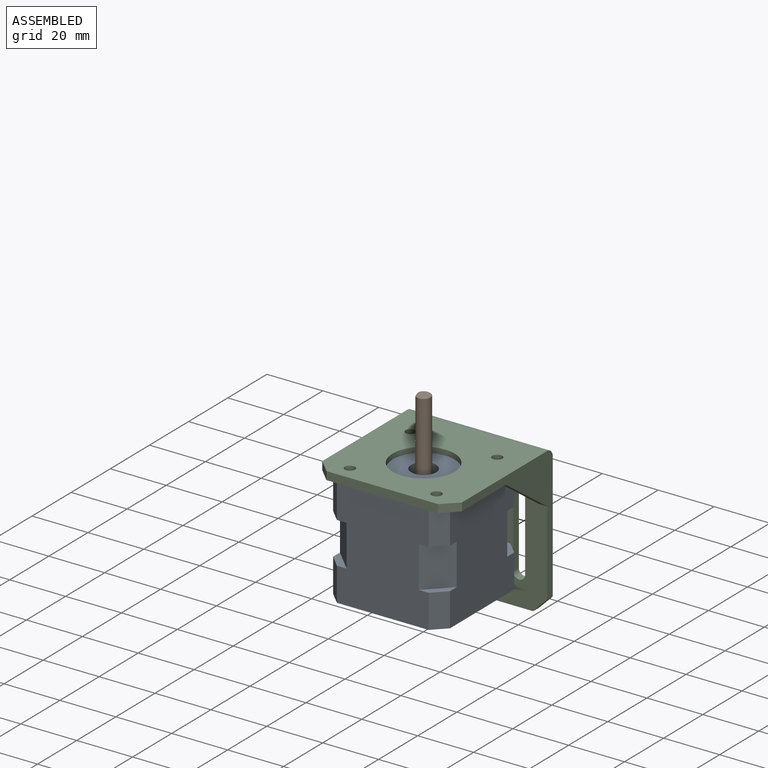
[diagram: assembled view]
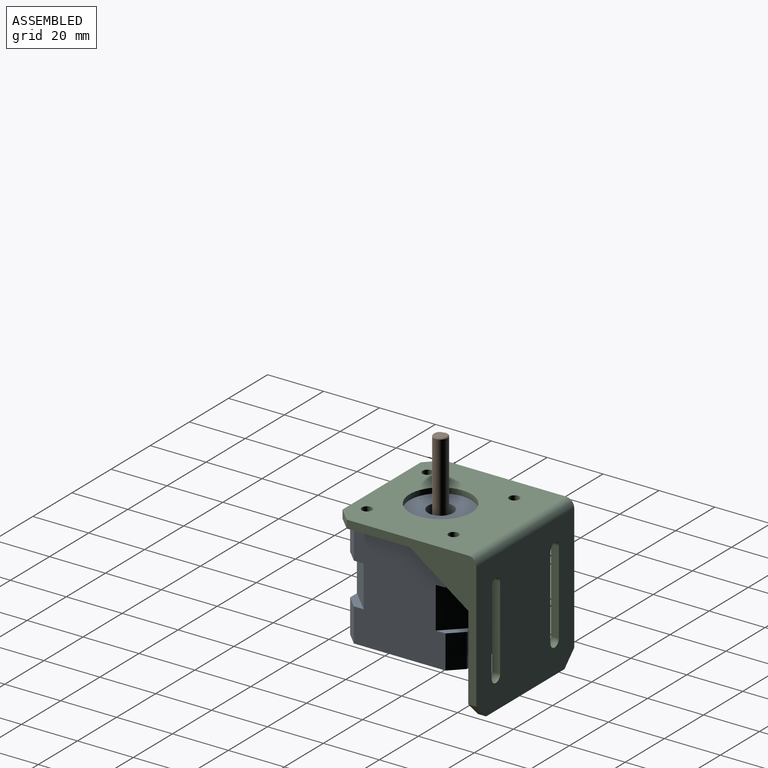
[diagram: assembled view, second angle]
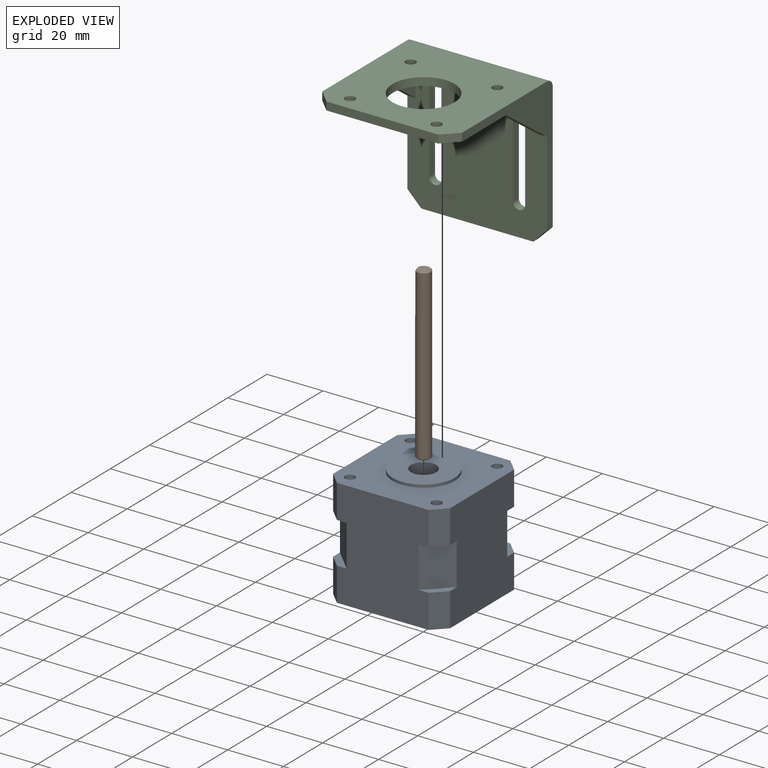
[diagram: exploded view]
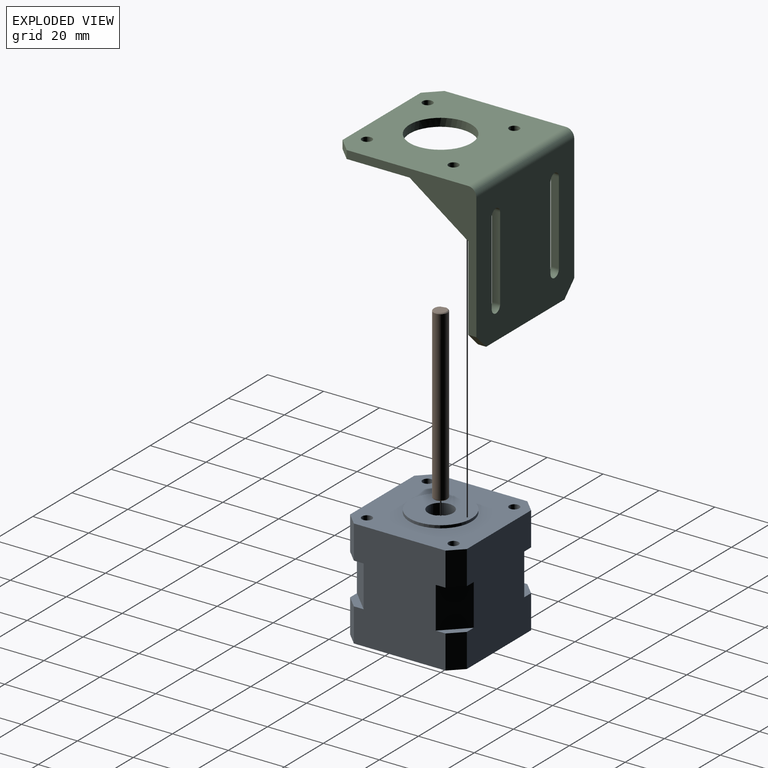
[diagram: exploded view, second angle]
ASSEMBLY  parts=3 mates=2
PART A: 37 faces, bbox 41.8x39.8x41.8 mm
  f0: plane 38.8x32.8mm, normal (0,0,1), area 1169mm2, adj f4,f7,f14,f15,f16,f17,f25,f26
  f1: plane 38.8x32.8mm, normal (1,0,0), area 1169mm2, adj f6,f7,f14,f15,f17,f19,f25,f26
  f2: plane 38.8x32.8mm, normal (-1,0,0), area 1169mm2, adj f4,f5,f14,f15,f16,f18,f31,f32
  f3: plane 38.8x32.8mm, normal (0,0,-1), area 1169mm2, adj f5,f6,f14,f15,f18,f19,f28,f29
  f4: plane 12x4.5mm, normal (-0.71,0,0.71), area 76.4mm2, adj f0,f2,f15,f35
  f5: plane 12x4.5mm, normal (-0.71,0,-0.71), area 76.4mm2, adj f2,f3,f15,f32
  f6: plane 12x4.5mm, normal (0.71,0,-0.71), area 76.4mm2, adj f1,f3,f15,f29
  f7: plane 12x4.5mm, normal (0.71,0,0.71), area 76.4mm2, adj f0,f1,f15,f26
  f8: cylinder r=4.5mm len=9mm, axis (0,1,0), area 113.1mm2, adj f21,f24
  f9: cylinder r=1.8mm len=38.8mm, axis (0,1,0), area 438.8mm2, adj f14,f15
  f10: cylinder r=1.8mm len=38.8mm, axis (0,1,0), area 438.8mm2, adj f14,f15
  f11: cylinder r=1.8mm len=38.8mm, axis (0,1,0), area 438.8mm2, adj f14,f15
  f12: cylinder r=1.8mm len=38.8mm, axis (0,1,0), area 438.8mm2, adj f14,f15
  f13: cylinder r=4.5mm len=9mm, axis (0,1,0), area 84.8mm2, adj f14,f23
  f14: plane 41.8x41.8mm, normal (0,-1,0), area 1602.4mm2, adj f0,f1,f2,f3,f9,f10,f11,f12
  f15: plane 41.8x41.8mm, normal (0,1,0), area 1278.9mm2, adj f0,f1,f2,f3,f4,f5,f6,f7
  f16: plane 12x4.5mm, normal (-0.71,0,0.71), area 76.4mm2, adj f0,f2,f14,f36
  f17: plane 12x4.5mm, normal (0.71,0,0.71), area 76.4mm2, adj f0,f1,f14,f27
  f18: plane 12x4.5mm, normal (-0.71,0,-0.71), area 76.4mm2, adj f2,f3,f14,f33
  f19: plane 12x4.5mm, normal (0.71,0,-0.71), area 76.4mm2, adj f1,f3,f14,f30
  f20: cylinder r=11.1mm len=22.2mm, axis (0,-1,0), area 69.7mm2, adj f15,f21
  f21: plane 22.2x22.2mm, normal (0,1,0), area 323.5mm2, adj f8,f20
  f22: cylinder r=2.5mm len=32.8mm, axis (0,1,0), area 515.2mm2, adj f23,f24
  f23: plane 9x9mm, normal (0,-1,0), area 44mm2, adj f13,f22
  f24: plane 9x9mm, normal (0,1,0), area 44mm2, adj f8,f22
  f25: plane 14.8x8mm, normal (0.71,0,0.71), area 167.4mm2, adj f0,f1,f26,f27
  f26: plane 8x8mm, normal (0,-1,0), area 21.9mm2, adj f0,f1,f7,f25
  f27: plane 8x8mm, normal (0,1,0), area 21.9mm2, adj f0,f1,f17,f25
  f28: plane 14.8x8mm, normal (0.71,0,-0.71), area 167.4mm2, adj f1,f3,f29,f30
  f29: plane 8x8mm, normal (0,-1,0), area 21.9mm2, adj f1,f3,f6,f28
  f30: plane 8x8mm, normal (0,1,0), area 21.9mm2, adj f1,f3,f19,f28
  f31: plane 14.8x8mm, normal (-0.71,0,-0.71), area 167.4mm2, adj f2,f3,f32,f33
  f32: plane 8x8mm, normal (0,-1,0), area 21.9mm2, adj f2,f3,f5,f31
  f33: plane 8x8mm, normal (0,1,0), area 21.9mm2, adj f2,f3,f18,f31
  f34: plane 14.8x8mm, normal (-0.71,0,0.71), area 167.4mm2, adj f0,f2,f35,f36
  f35: plane 8x8mm, normal (0,-1,0), area 21.9mm2, adj f0,f2,f4,f34
  f36: plane 8x8mm, normal (0,1,0), area 21.9mm2, adj f0,f2,f16,f34
PART B: 7 faces, bbox 5.1x60.9x5.1 mm
  f0: plane 4.4x4.4mm, normal (0,-1,0), area 15.2mm2, adj f4
  f1: plane 4.4x4.2mm, normal (0,1,0), area 15mm2, adj f3,f5
  f2: cylinder r=2.5mm len=60.2mm, axis (0,-1,0), area 898.3mm2, adj f3,f4,f5,f6
  f3: cone r=2.5mm half-angle=45deg, axis (0,-1,0), area 5.2mm2, adj f1,f2,f5
  f4: cone r=2.5mm half-angle=45deg, axis (0,1,0), area 6.3mm2, adj f0,f2
  f5: plane 15.05x3.05mm, normal (-1,0,0), area 44.8mm2, adj f1,f2,f3,f6
  f6: plane 3x0.5mm, normal (0,1,0), area 1mm2, adj f2,f5
PART C: 30 faces, bbox 50x53.1x51.4 mm
  f0: plane 50x48.5mm, normal (0,1,0), area 1972.2mm2, adj f1,f3,f11,f18,f19,f20,f21,f22
  f1: plane 48.13x46.4mm, normal (1,0,0), area 421.4mm2, adj f0,f2,f4,f14,f17,f19,f25,f29
  f2: plane 50x48.5mm, normal (0,-1,0), area 1850.4mm2, adj f1,f3,f4,f11,f18,f19,f20,f21
  f3: plane 40x2.9mm, normal (0,0,-1), area 116mm2, adj f0,f2,f19,f20
  f4: plane 50.23x50mm, normal (0,0,-1), area 2115.3mm2, adj f1,f2,f5,f6,f7,f8,f9,f10
  f5: plane 29.7x2.9mm, normal (1,0,0), area 86.1mm2, adj f4,f6,f16,f17
  f6: cylinder r=2.15mm len=4.3mm, axis (0,0,-1), area 19.6mm2, adj f4,f5,f7,f17
  f7: plane 29.7x2.9mm, normal (-1,0,0), area 86.1mm2, adj f4,f6,f16,f17
  f8: cylinder r=2.15mm len=4.3mm, axis (0,0,-1), area 19.6mm2, adj f4,f9,f15,f17
  f9: plane 29.7x2.9mm, normal (1,0,0), area 86.1mm2, adj f4,f8,f10,f17
  f10: cylinder r=2.15mm len=4.3mm, axis (0,0,-1), area 19.6mm2, adj f4,f9,f15,f17
  f11: plane 48.13x46.4mm, normal (-1,0,0), area 421.4mm2, adj f0,f2,f4,f12,f17,f20,f27,f29
  f12: plane 5x5mm, normal (-0.71,-0.71,0), area 20.5mm2, adj f4,f11,f13,f17
  f13: plane 40x2.9mm, normal (0,-1,0), area 116mm2, adj f4,f12,f14,f17
  f14: plane 5x5mm, normal (0.71,-0.71,0), area 20.5mm2, adj f1,f4,f13,f17
  f15: plane 29.7x2.9mm, normal (-1,0,0), area 86.1mm2, adj f4,f8,f10,f17
  f16: cylinder r=2.15mm len=4.3mm, axis (0,0,-1), area 19.6mm2, adj f4,f5,f7,f17
  f17: plane 50.23x50mm, normal (0,0,1), area 2202.3mm2, adj f1,f5,f6,f7,f8,f9,f10,f11
  f18: cylinder r=1.8mm len=3.6mm, axis (0,1,0), area 32.8mm2, adj f0,f2
  f19: plane 5x5mm, normal (0.71,0,-0.71), area 20.5mm2, adj f0,f1,f2,f3
  f20: plane 5x5mm, normal (-0.71,0,-0.71), area 20.5mm2, adj f0,f2,f3,f11
  f21: cylinder r=11.1mm len=22.2mm, axis (0,1,0), area 202.3mm2, adj f0,f2
  f22: cylinder r=1.8mm len=3.6mm, axis (0,1,0), area 32.8mm2, adj f0,f2
  f23: cylinder r=1.8mm len=3.6mm, axis (0,1,0), area 32.8mm2, adj f0,f2
  f24: cylinder r=1.8mm len=3.6mm, axis (0,1,0), area 32.8mm2, adj f0,f2
  f25: plane 21x15mm, normal (0,-0.81,-0.58), area 74.8mm2, adj f1,f2,f4,f26
  f26: plane 21x15mm, normal (-1,0,0), area 157.5mm2, adj f2,f4,f25
  f27: plane 21x15mm, normal (0,-0.81,-0.58), area 74.8mm2, adj f2,f4,f11,f28
  f28: plane 21x15mm, normal (1,0,0), area 157.5mm2, adj f2,f4,f27
  f29: cylinder r=2.9mm len=50mm, axis (1,0,0), area 227.8mm2, adj f0,f1,f11,f17
PLACE A rot(axis=(0.58,-0.58,-0.58),120deg) t=(-27.29,0.02,-30.83)mm
PLACE B rot(axis=(0.99,0.12,0.12),90.8deg) t=(6.42,-26.65,-30.83)mm
PLACE C rot(axis=(0,-0.71,-0.71),180deg) t=(0.11,27.42,-11.43)mm
MATE fastened A.f12 <-> C.f22  axis (0,0,1) through (-15.39,15.52,38.8)mm
MATE revolute A.f8 <-> B.f2  axis (0,0,-1) through (0.11,0.02,3)mm
